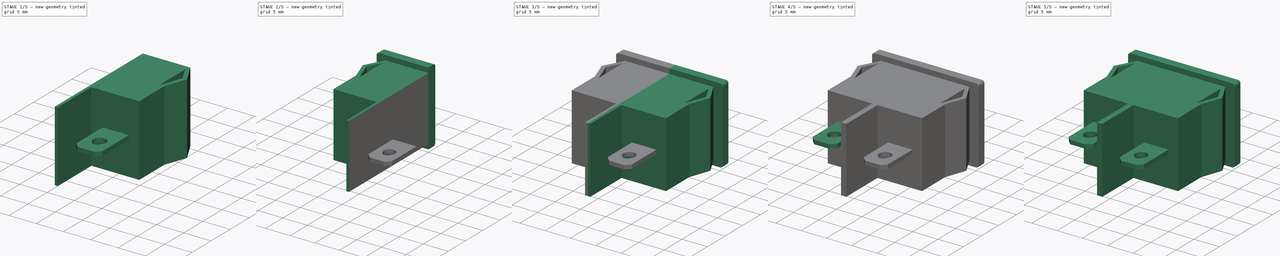
[diagram: build sequence overview — one tinted view per stage of 5, left to right]
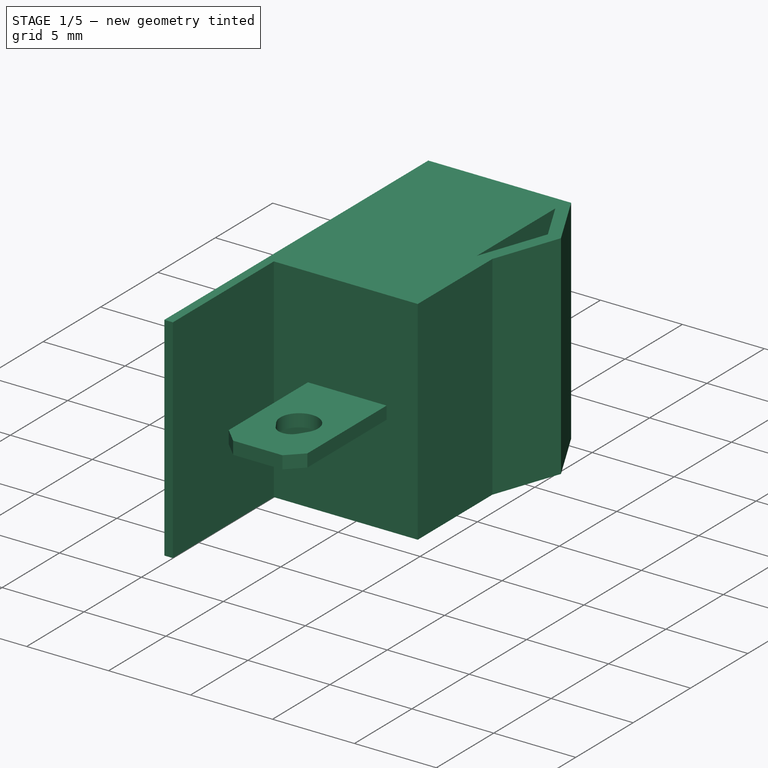
[diagram: stage 1 of 5 — iso view after this stage's code; geometry added in this stage tinted green]
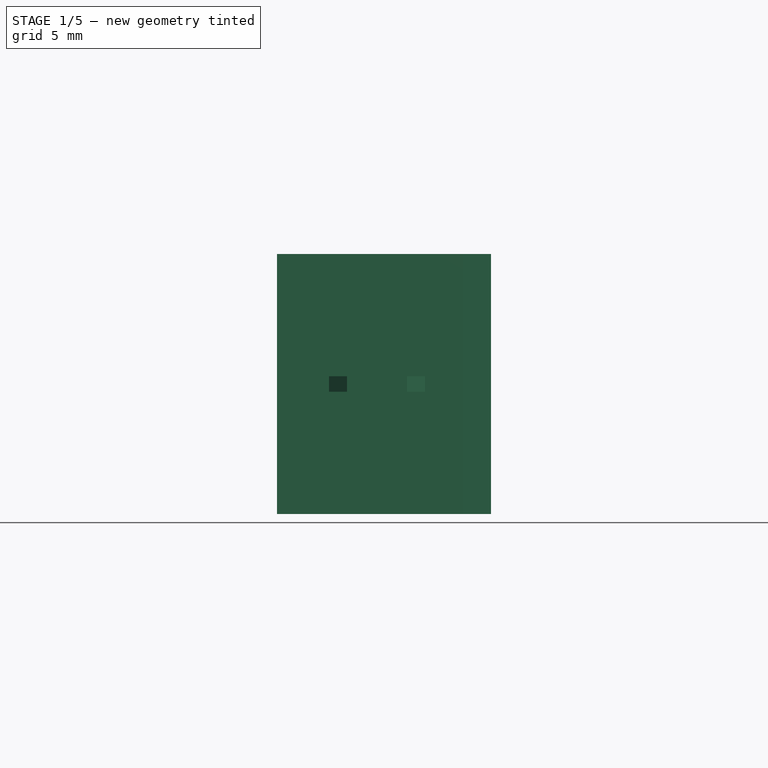
[diagram: stage 1 of 5 — front view after this stage's code; geometry added in this stage tinted green]
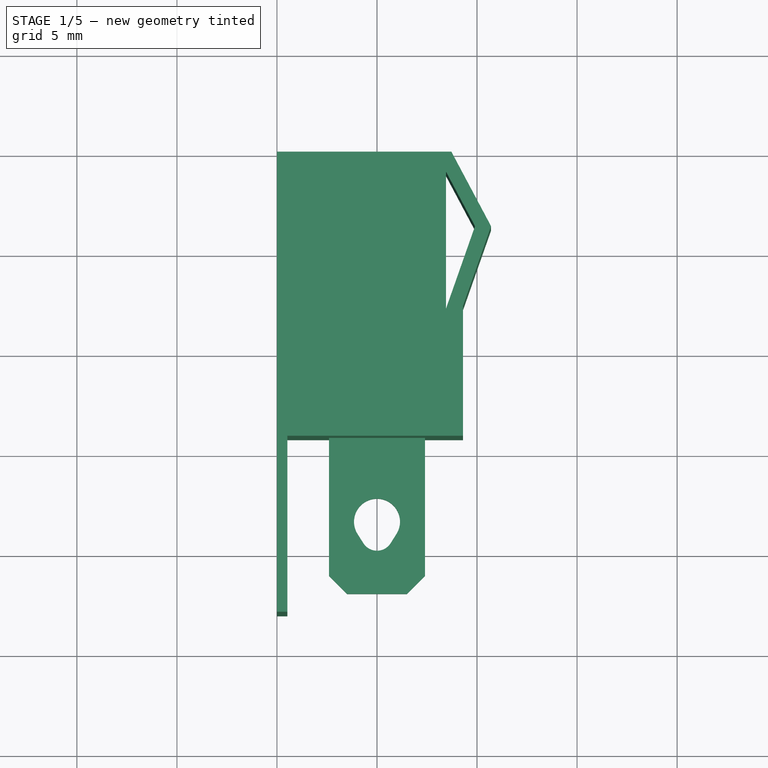
[diagram: stage 1 of 5 — top view after this stage's code; geometry added in this stage tinted green]
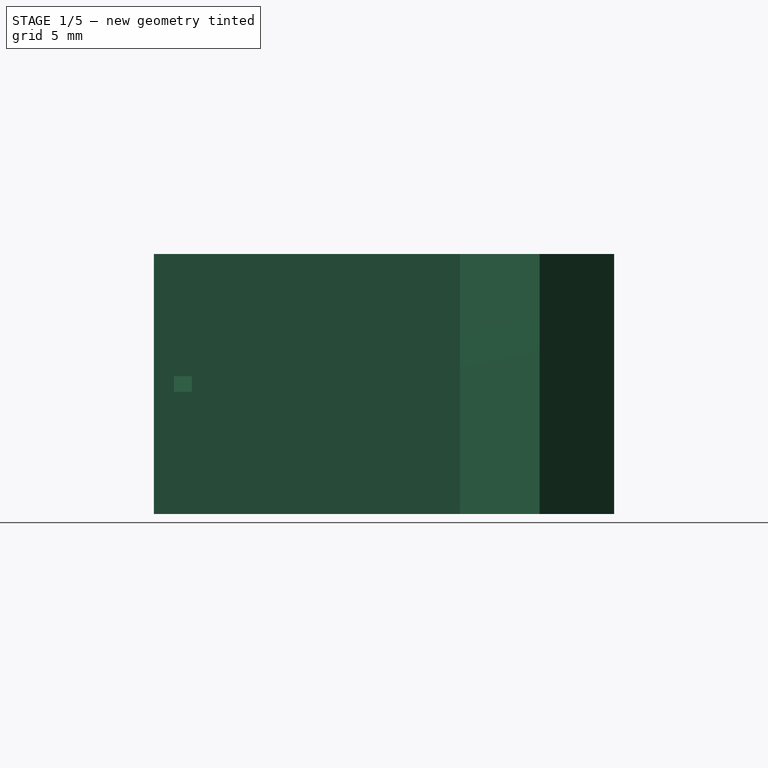
[diagram: stage 1 of 5 — right view after this stage's code; geometry added in this stage tinted green]
FCSTD DOCUMENT  (FreeCAD 0.16RUnknown)
Label: RLEIL RL3-4T125 55
License: All rights reserved
LicenseURL: http://en.wikipedia.org/wiki/All_rights_reserved
objects: Part::FeaturePython×5, Sketcher::SketchObject×4, PartDesign::Pad×4, Part::MultiFuse×4, Part::Fillet×2, App::DocumentObjectGroup×2, Spreadsheet::Sheet×1, Part::Mirroring×1
note: 24 computed .brp shape members not serialized (recipe doc carries the construction recipe); baked Part::Feature solids carry a one-line shape summary decoded from their .brp

FEATURE [Spreadsheet::Sheet] Spreadsheet  label="pars"
  cells = A1=Bolts and Nuts; B1=Value; D1=Components; E1=Value; A2=Thread Tight Tolerance (Radius, ratio); B2(ThrTighRatio)=0.96; D2=Tight Cilinder Tolerances (Radius, mm); E2(CilTight)=0.1; A3=Thread Tight Tolerance (Radius, mm); B3(ThrTightmm)=0.1; D3=Loose Cilinder Tolerances (Radius, mm); E3(CilLoose)=0.1; A5=Nut Slot Width Clearance (mm); B5(NutWidthClearmm)=0.1; A6=Nut Slot Thickess Clearance (mm); B6(NutThickClearmm)=0.1; A13=Particular parameters; B13=Value
FEATURE [Sketcher::SketchObject] Sketch  label="Main"
  sketch-geometry (12):
    g0: LineSegment StartX=8.7173 StartY=0 StartZ=0 EndX=10.7 EndY=-3.72201 EndZ=0
    g1: LineSegment StartX=10.7 StartY=-3.72201 StartZ=0 EndX=9.3 EndY=-7.7 EndZ=0
    g2: LineSegment StartX=9.3 StartY=-7.7 StartZ=0 EndX=9.3 EndY=-14.2 EndZ=0
    g3: LineSegment StartX=0 StartY=-23 StartZ=0 EndX=0 EndY=0 EndZ=0
    g4: LineSegment StartX=8.45 StartY=-1 StartZ=0 EndX=8.45 EndY=-7.84207 EndZ=0
    g5: LineSegment StartX=8.45 StartY=-7.84207 StartZ=0 EndX=9.9 EndY=-3.72201 EndZ=0
    g6: LineSegment StartX=9.9 StartY=-3.72201 StartZ=0 EndX=8.45 EndY=-1 EndZ=0
    g7: LineSegment [constr] StartX=9.9 StartY=-3.72201 StartZ=0 EndX=10.7 EndY=-3.72201 EndZ=0
    g8: LineSegment StartX=0 StartY=0 StartZ=0 EndX=8.7173 EndY=0 EndZ=0
    g9: LineSegment StartX=9.3 StartY=-14.2 StartZ=0 EndX=0.52 EndY=-14.2 EndZ=0
    g10: LineSegment StartX=0.52 StartY=-14.2 StartZ=0 EndX=0.52 EndY=-23 EndZ=0
    g11: LineSegment StartX=0.52 StartY=-23 StartZ=0 EndX=0 EndY=-23 EndZ=0
  constraints (34):
    c: Coincident(g0,g1)
    c: Coincident(g1,g2)
    c: Coincident(g4,g5)
    c: Coincident(g5,g6)
    c: Coincident(g6,g4)
    c: Vertical(g3)
    c: Vertical(g2)
    c: Vertical(g4)
    c: Parallel(g6,g0)
    c: Parallel(g5,g1)
    c: DistanceX(g3,g2) = 9.3
    c: Horizontal(g7)
    c: Coincident(g7,g5)
    c: Coincident(g7,g0)
    c: DistanceY(g2,g2) = 6.5
    c: DistanceX(g0) = 10.7
    c: Equal(g0,g1)
    c: DistanceX(g7,g7) = 0.8
    c: DistanceX(g4,g5) = 1.45
    c: Coincident(g3,g-1)
    c: Coincident(g8,g-1)
    c: Horizontal(g8)
    c: Coincident(g8,g0)
    c: DistanceY(g4,g0) = 1
    c: Coincident(g9,g10)
    c: Coincident(g10,g11)
    c: Horizontal(g9)
    c: Horizontal(g11)
    c: Coincident(g9,g2)
    c: DistanceY(g2) = -14.2
    c: Coincident(g3,g11)
    c: DistanceY(g3,g3) = 23
    c: DistanceX(g11,g11) = 0.52
    c: Vertical(g10)
FEATURE [PartDesign::Pad] Pad  label="Main001"
  Length = 13
  Length2 = 100
  Midplane = true
  Sketch = -> Sketch
  Type = 0
FEATURE [Sketcher::SketchObject] Sketch003  label="Metal"
  sketch-geometry (12):
    g0: LineSegment StartX=-2.4 StartY=0 StartZ=0 EndX=2.4 EndY=0 EndZ=0
    g1: LineSegment StartX=2.4 StartY=0 StartZ=0 EndX=2.4 EndY=-7.1 EndZ=0
    g2: LineSegment StartX=2.4 StartY=-7.1 StartZ=0 EndX=1.5 EndY=-8 EndZ=0
    g3: LineSegment StartX=1.5 StartY=-8 StartZ=0 EndX=-1.5 EndY=-8 EndZ=0
    g4: LineSegment StartX=-1.5 StartY=-8 StartZ=0 EndX=-2.4 EndY=-7.1 EndZ=0
    g5: LineSegment StartX=-2.4 StartY=-7.1 StartZ=0 EndX=-2.4 EndY=0 EndZ=0
    g6: ArcOfCircle CenterX=0 CenterY=-4.39 CenterZ=0 NormalX=0 NormalY=0 NormalZ=1 Radius=1.15 StartAngle=5.71869 EndAngle=9.98927
    g7: ArcOfCircle CenterX=0 CenterY=-5.03513 CenterZ=0 NormalX=0 NormalY=0 NormalZ=1 Radius=0.804865 StartAngle=3.70608 EndAngle=5.7187
    g8: LineSegment StartX=-0.68 StartY=-5.46573 StartZ=0 EndX=-0.971588 EndY=-5.00524 EndZ=0
    g9: LineSegment StartX=0.68 StartY=-5.46573 StartZ=0 EndX=0.971588 EndY=-5.00524 EndZ=0
    g10: GeomPoint [constr] X=0 Y=-3.24 Z=0
    g11: GeomPoint [constr] X=0 Y=-5.84 Z=0
  constraints (34):
    c: Coincident(g0,g1)
    c: Coincident(g1,g2)
    c: Coincident(g2,g3)
    c: Coincident(g3,g4)
    c: Coincident(g4,g5)
    c: Coincident(g0,g5)
    c: Symmetric(g0,g0,g-1)
    c: Horizontal(g0)
    c: Vertical(g5)
    c: Vertical(g1)
    c: Symmetric(g4,g1,g-2)
    c: Symmetric(g3,g2,g-2)
    c: DistanceX(g0,g0) = 4.8
    c: DistanceY(g2,g0) = 8
    c: Perpendicular(g4,g2)
    c: DistanceX(g3,g3) = 3
    c: Coincident(g8,g6)
    c: Coincident(g6,g9)
    c: Coincident(g9,g7)
    c: Coincident(g7,g8)
    c: Tangent(g6,g8)
    c: Tangent(g9,g6)
    c: Tangent(g7,g9)
    c: Tangent(g7,g8)
    c: PointOnObject(g6,g-2)
    c: PointOnObject(g7,g-2)
    c: PointOnObject(g11,g7)
    c: PointOnObject(g11,g-2)
    c: PointOnObject(g10,g6)
    c: PointOnObject(g10,g-2)
    c: Radius(g6) = 1.15
    c: DistanceY(g2,g11) = 2.16
    c: DistanceY(g11,g10) = 2.6
    c: DistanceX(g7,g7) = 1.36
FEATURE [PartDesign::Pad] Pad003  label="Metal001"
  Length = 0.78
  Length2 = 100
  Midplane = true
  Sketch = -> Sketch003
  Type = 0
FEATURE [App::DocumentObjectGroup] Group001  label="Component_src"
  Group = -> [Pad002,Fillet001,Pad003]
FEATURE [Part::FeaturePython] Clone001  label="Clone of Metal001"  # Draft clone (typed FeaturePython)
  Objects = -> [Pad003]
  Placement = pos=(5,-14,0) rot=(0,0,1;0rad)
  Scale = (1,1,1)
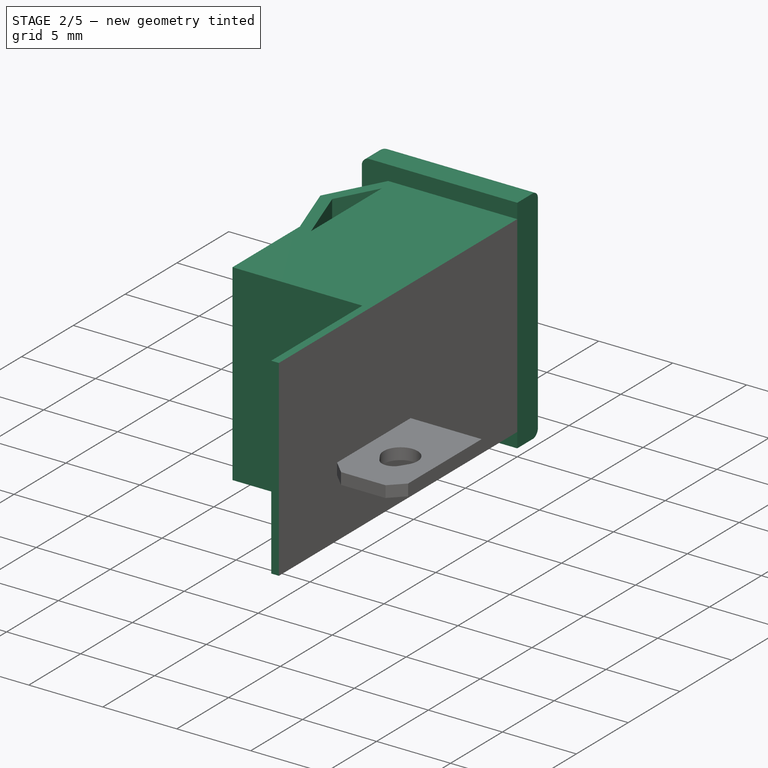
[diagram: stage 2 of 5 — iso view after this stage's code; geometry added in this stage tinted green]
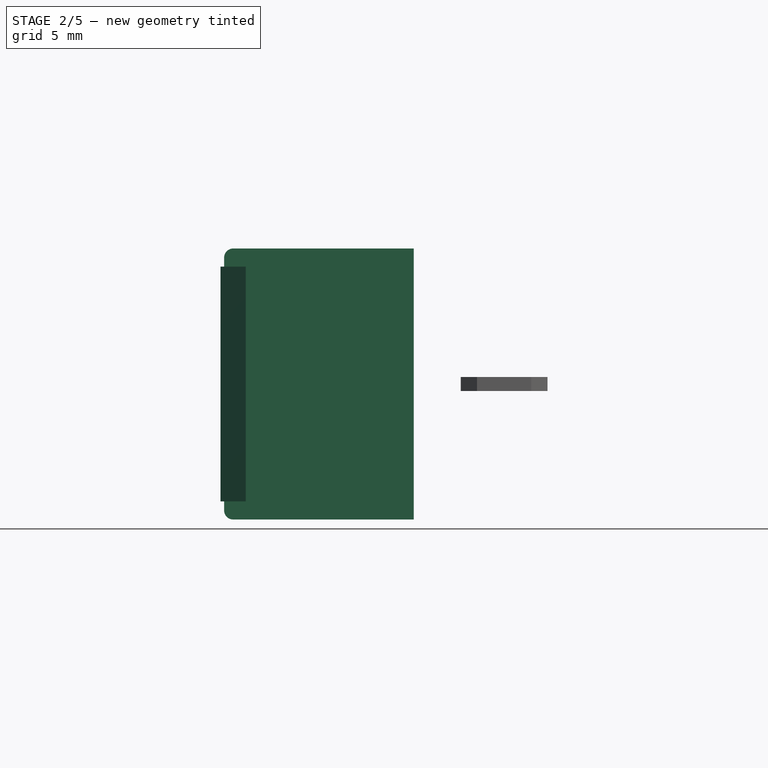
[diagram: stage 2 of 5 — front view after this stage's code; geometry added in this stage tinted green]
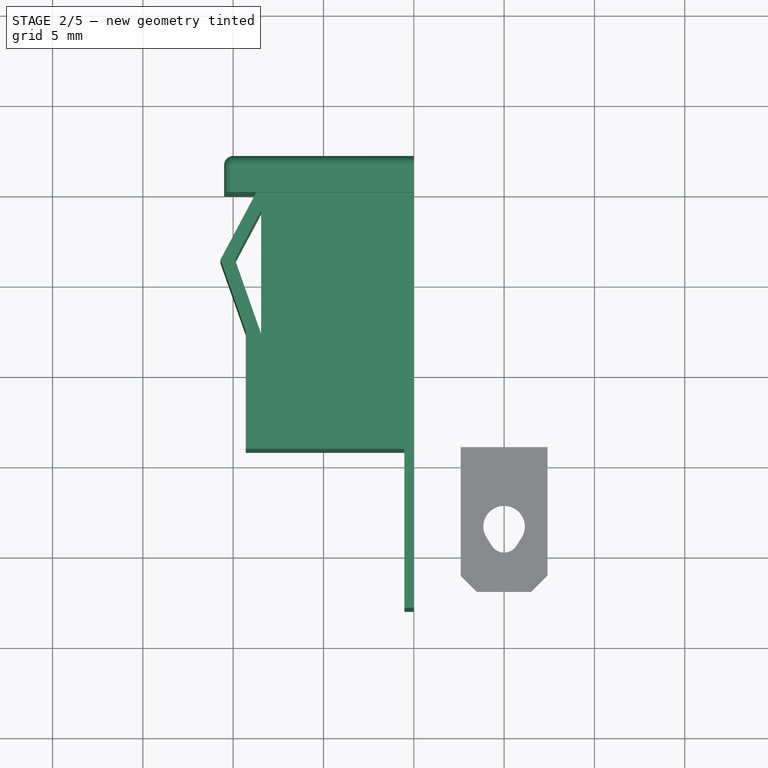
[diagram: stage 2 of 5 — top view after this stage's code; geometry added in this stage tinted green]
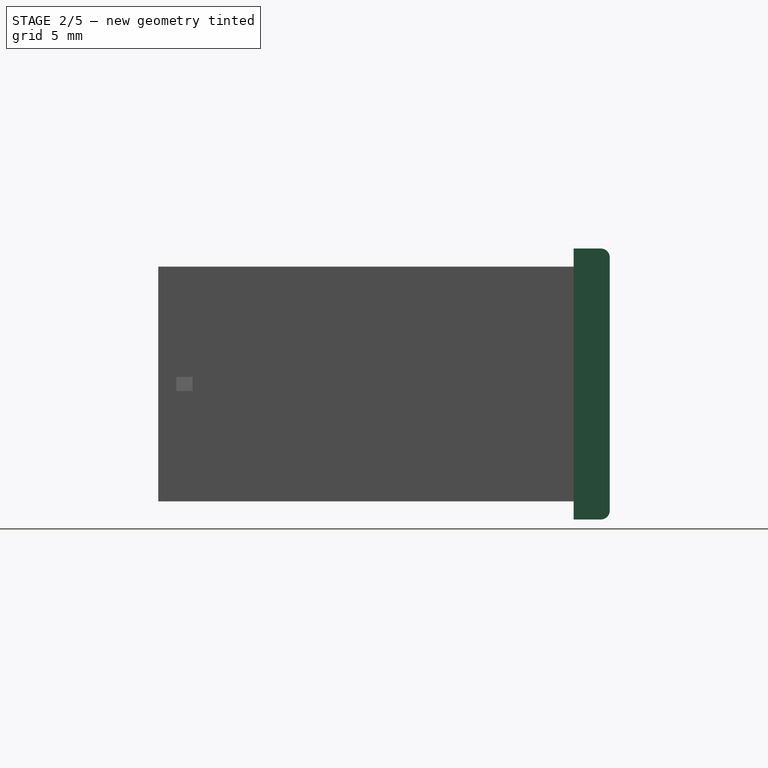
[diagram: stage 2 of 5 — right view after this stage's code; geometry added in this stage tinted green]
FEATURE [Sketcher::SketchObject] Sketch001  label="UpperSwitch"
  Placement = pos=(0,0,0) rot=(0,0.707107,0.707107;3.14159rad)
  Support = -> Pad [Face8]
  sketch-geometry (4):
    g0: LineSegment StartX=0 StartY=7.5 StartZ=0 EndX=-10.5 EndY=7.5 EndZ=0
    g1: LineSegment StartX=-10.5 StartY=7.5 StartZ=0 EndX=-10.5 EndY=-7.5 EndZ=0
    g2: LineSegment StartX=-10.5 StartY=-7.5 StartZ=0 EndX=0 EndY=-7.5 EndZ=0
    g3: LineSegment StartX=0 StartY=-7.5 StartZ=0 EndX=0 EndY=7.5 EndZ=0
  constraints (11):
    c: Coincident(g0,g1)
    c: Coincident(g1,g2)
    c: Coincident(g2,g3)
    c: Coincident(g3,g0)
    c: Horizontal(g0)
    c: Horizontal(g2)
    c: Vertical(g1)
    c: Vertical(g3)
    c: Symmetric(g0,g2,g-1)
    c: DistanceX(g0,g0) = 10.5
    c: DistanceY(g1,g1) = 15
FEATURE [PartDesign::Pad] Pad001  label="UpperSwitch001"
  Length = 2
  Length2 = 100
  Sketch = -> Sketch001
  Type = 0
FEATURE [Part::Fillet] Fillet  label="NiceFillet"
  Base = -> Pad001
  Edges = 5 edges r=0.5: [Edge42,Edge43,Edge44,Edge45,Edge46]
FEATURE [Part::Mirroring] Part__Mirroring  label="NiceFillet (Mirror #1)"
  Base = (0,0,0)
  Normal = (1,0,0)
  Source = -> Fillet
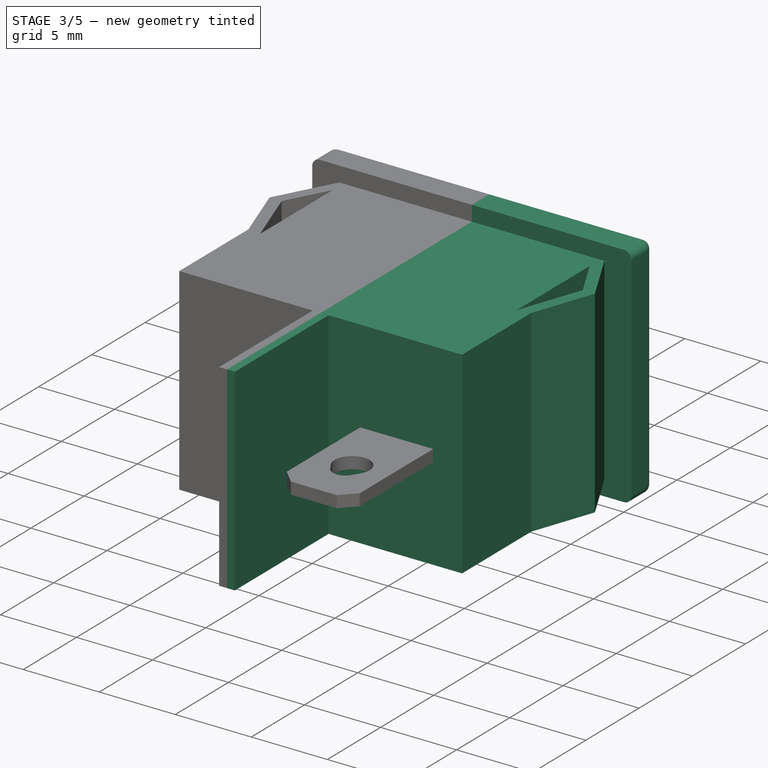
[diagram: stage 3 of 5 — iso view after this stage's code; geometry added in this stage tinted green]
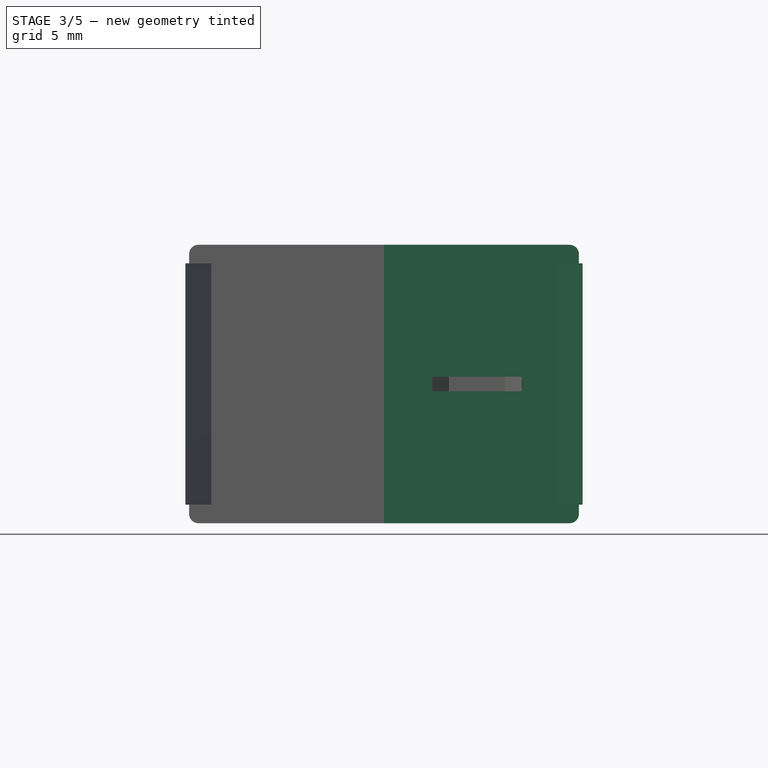
[diagram: stage 3 of 5 — front view after this stage's code; geometry added in this stage tinted green]
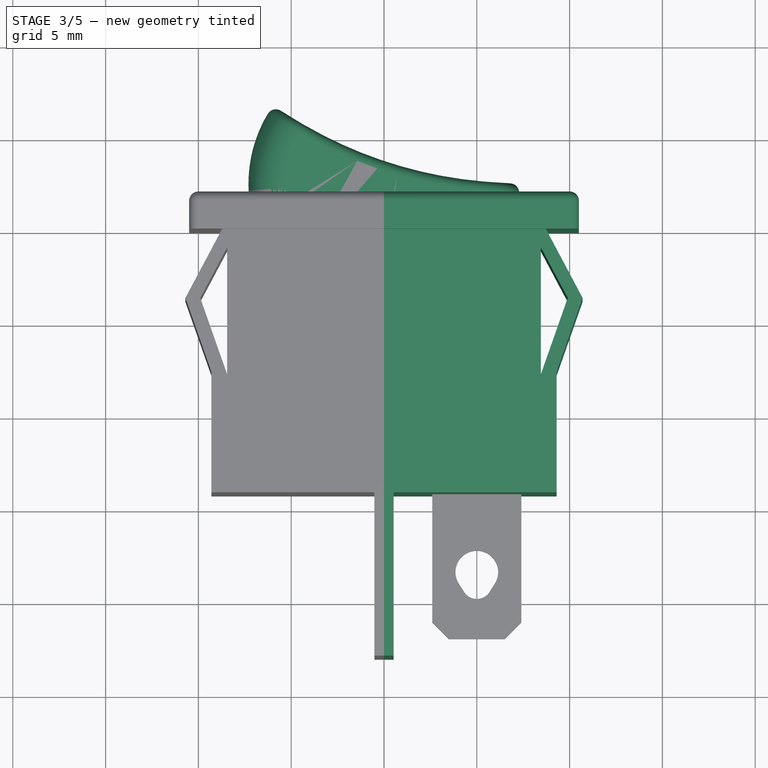
[diagram: stage 3 of 5 — top view after this stage's code; geometry added in this stage tinted green]
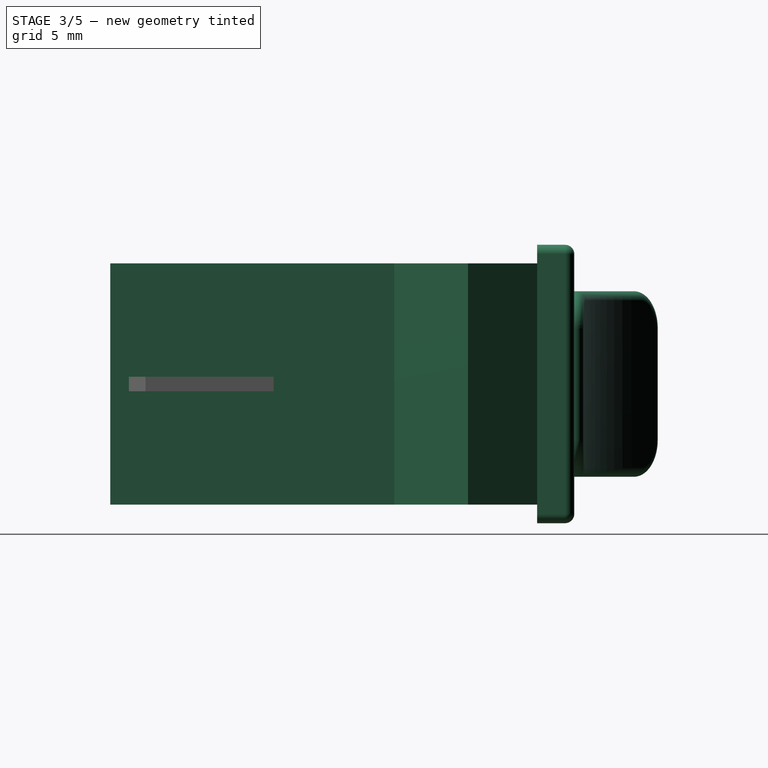
[diagram: stage 3 of 5 — right view after this stage's code; geometry added in this stage tinted green]
FEATURE [Sketcher::SketchObject] Sketch002  label="Switch"
  sketch-geometry (3):
    g0: ArcOfCircle CenterX=0 CenterY=0 CenterZ=0 NormalX=0 NormalY=0 NormalZ=1 Radius=7.3 StartAngle=2.52857 EndAngle=6.28319
    g1: ArcOfCircle CenterX=7.29997 CenterY=23.0658 CenterZ=0 NormalX=0 NormalY=0 NormalZ=1 Radius=23.0658 StartAngle=4.09937 EndAngle=4.71239
    g2: GeomPoint [constr] X=-7.3 Y=0 Z=0
  constraints (9):
    c: Coincident(g1,g0)
    c: Coincident(g1,g0)
    c: Coincident(g-1,g0)
    c: PointOnObject(g0,g-1)
    c: PointOnObject(g2,g0)
    c: PointOnObject(g2,g-1)
    c: DistanceX(g2,g0) = 14.6
    c: Tangent(g1,g-1)
    c: DistanceY(g0) = 4.2
FEATURE [PartDesign::Pad] Pad002  label="Switch001"
  Length = 10
  Length2 = 100
  Midplane = true
  Sketch = -> Sketch002
  Type = 0
FEATURE [Part::Fillet] Fillet001  label="FilletSwitch"
  Base = -> Pad002
  Edges = 6 edges: [Edge1 r=0.5,Edge2 r=0.5,Edge3 r=2,Edge4 r=2,Edge5 r=0.5,Edge6 r=0.5]
FEATURE [Part::FeaturePython] Clone  label="Clone of FilletSwitch"  # Draft clone (typed FeaturePython)
  Objects = -> [Fillet001]
  Placement = pos=(0,2.5,0) rot=(0,0,1;0rad)
  Scale = (1,1,1)
FEATURE [Part::MultiFuse] Fusion  label="Mirroring"
  Shapes = -> [Part__Mirroring,Fillet]
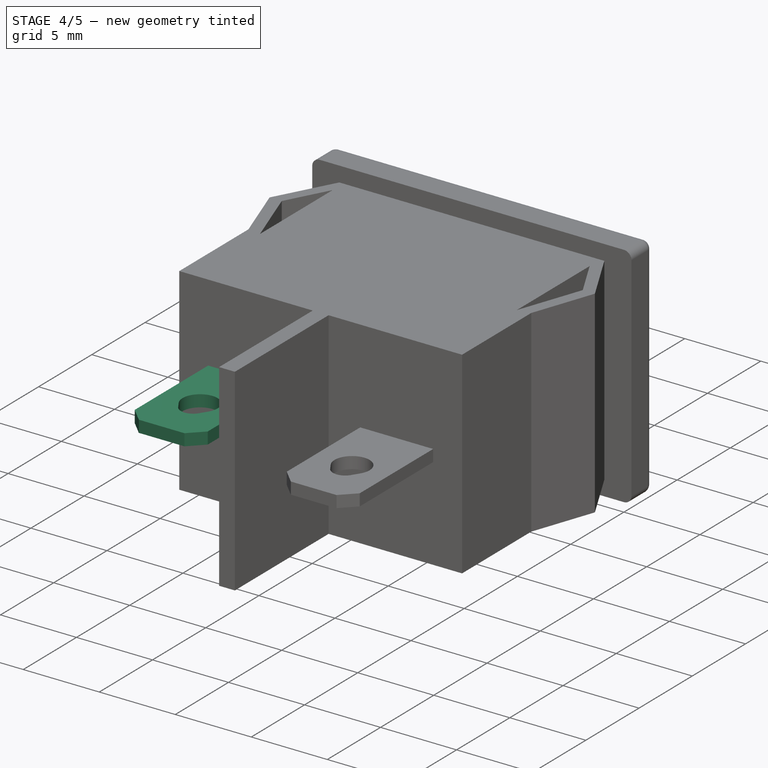
[diagram: stage 4 of 5 — iso view after this stage's code; geometry added in this stage tinted green]
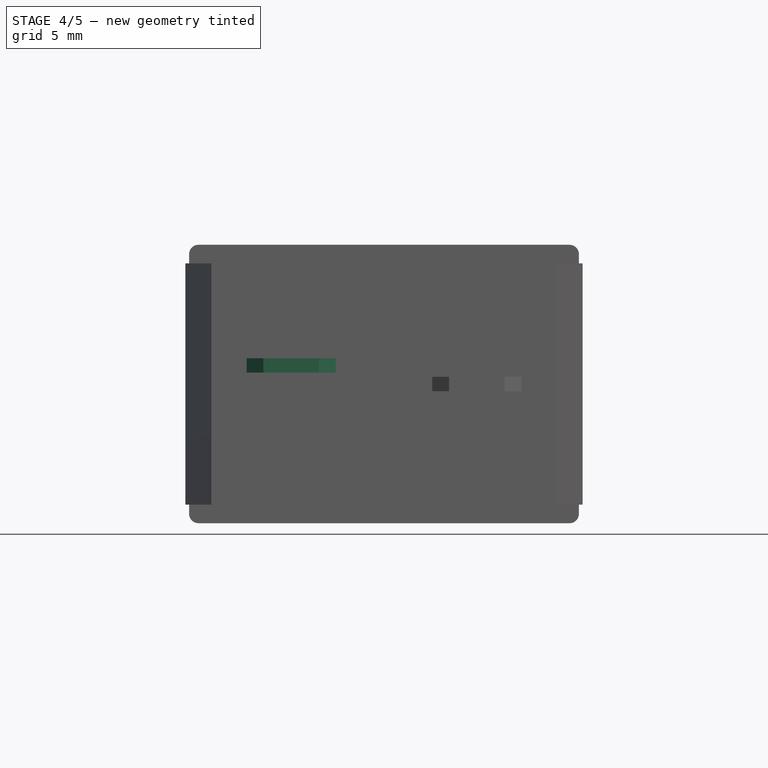
[diagram: stage 4 of 5 — front view after this stage's code; geometry added in this stage tinted green]
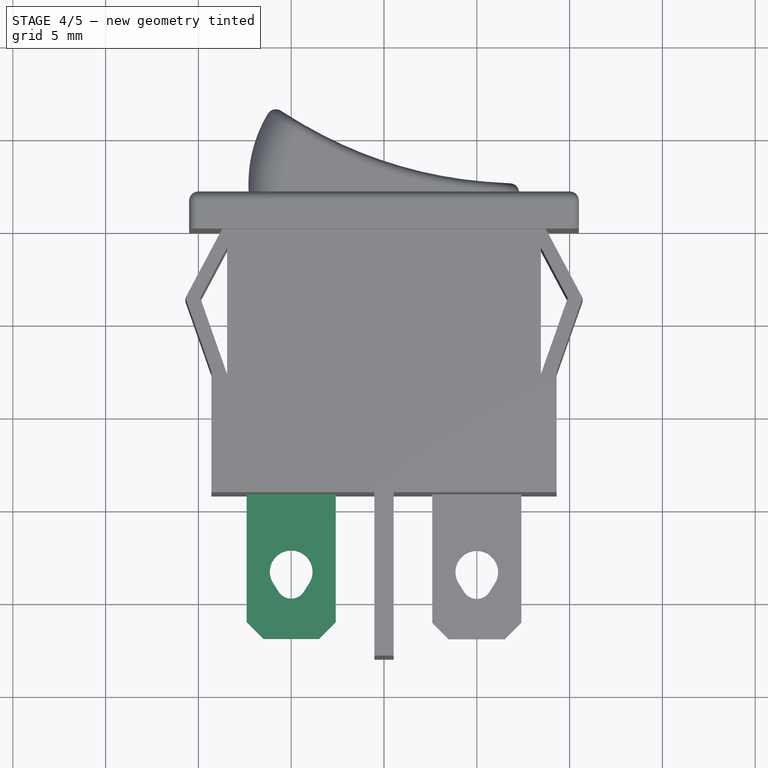
[diagram: stage 4 of 5 — top view after this stage's code; geometry added in this stage tinted green]
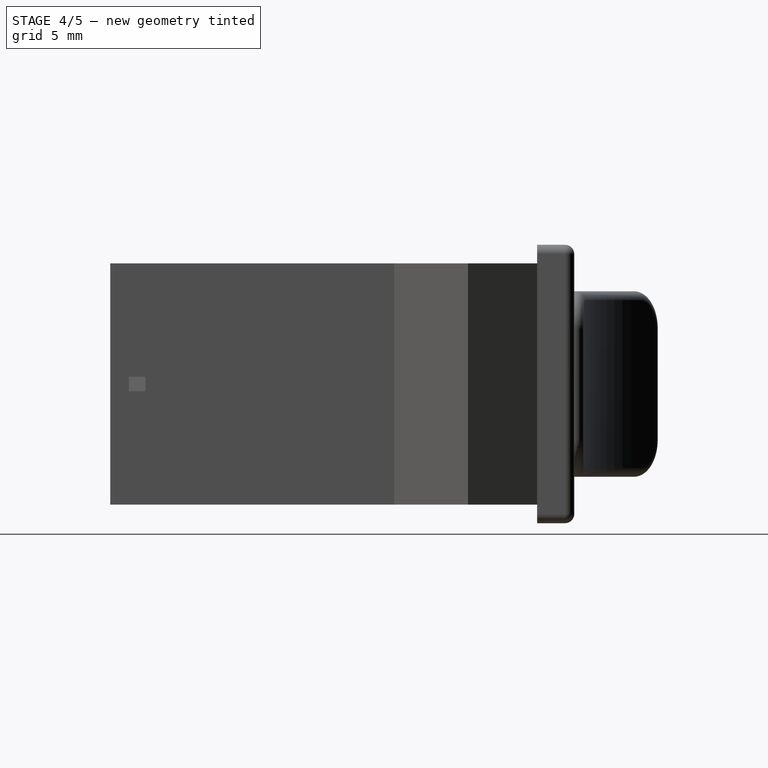
[diagram: stage 4 of 5 — right view after this stage's code; geometry added in this stage tinted green]
FEATURE [Part::MultiFuse] Fusion001  label="SwitchFusion"
  Shapes = -> [Fusion,Clone]
FEATURE [Part::FeaturePython] Clone002  label="Clone of Metal002"  # Draft clone (typed FeaturePython)
  Objects = -> [Pad003]
  Placement = pos=(-5,-14,1) rot=(0,0,1;0rad)
  Scale = (1,1,1)
FEATURE [Part::MultiFuse] Fusion002
  Shapes = -> [Fusion001,Clone001]
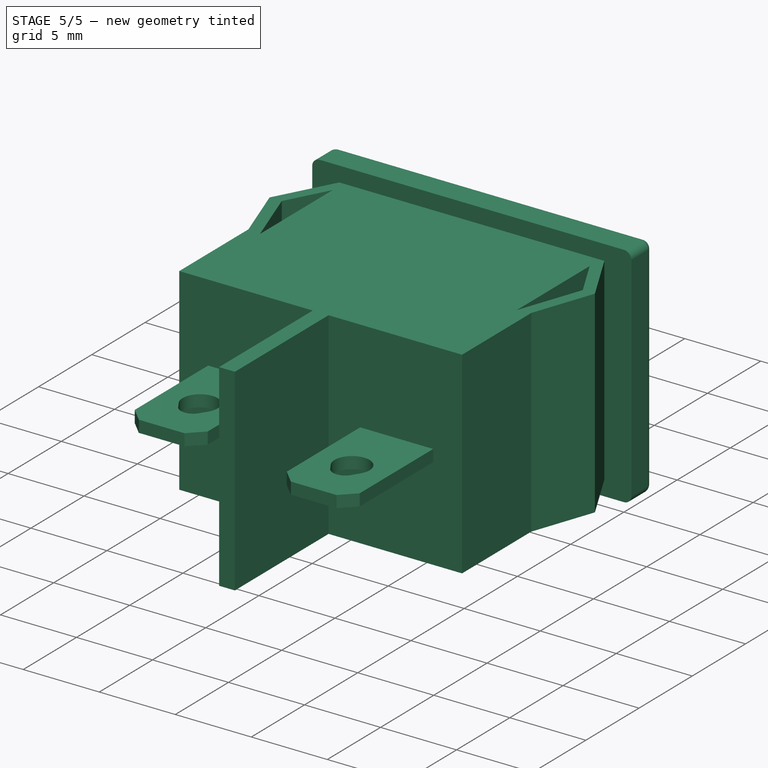
[diagram: stage 5 of 5 — iso view after this stage's code; geometry added in this stage tinted green]
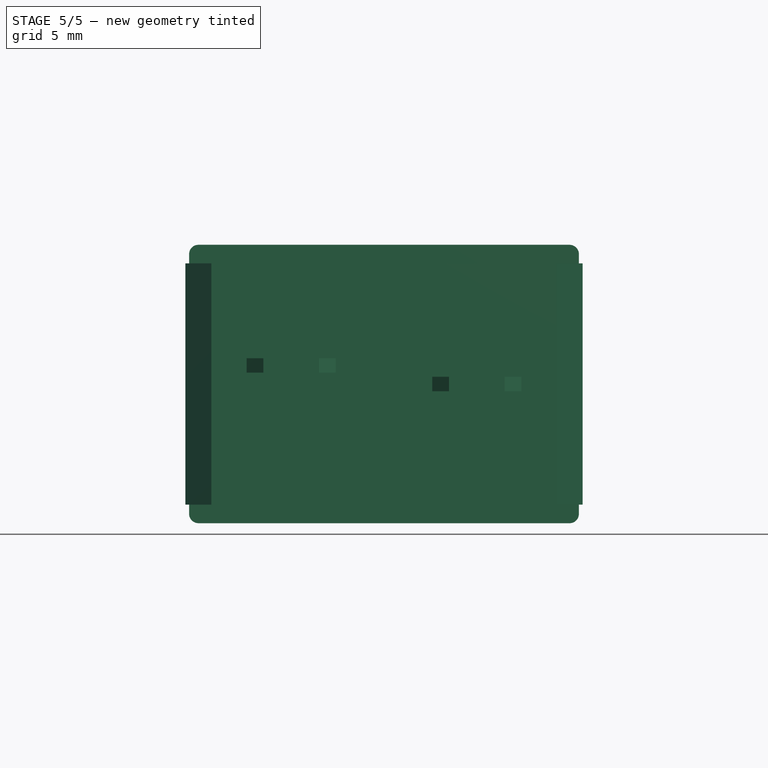
[diagram: stage 5 of 5 — front view after this stage's code; geometry added in this stage tinted green]
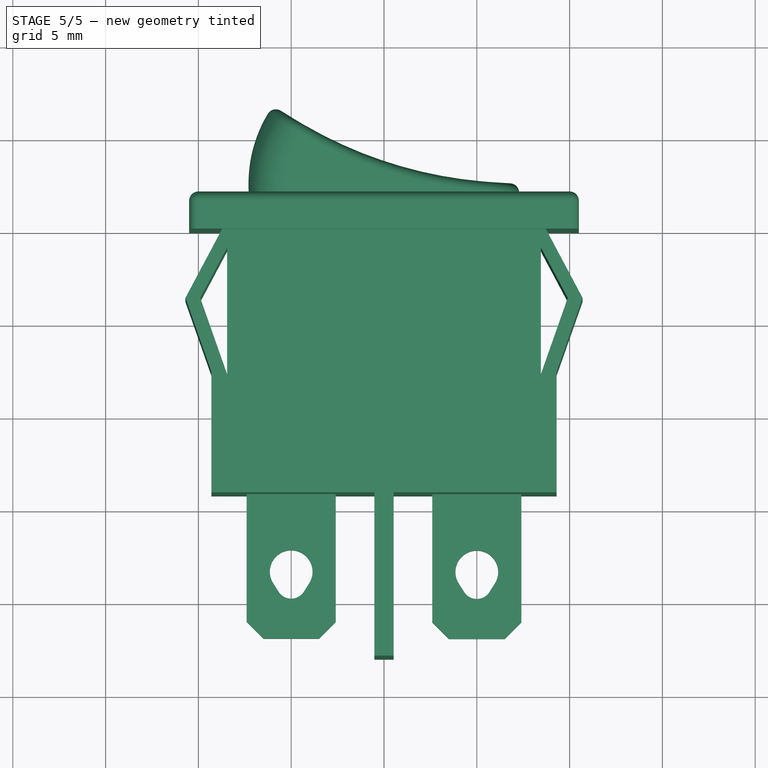
[diagram: stage 5 of 5 — top view after this stage's code; geometry added in this stage tinted green]
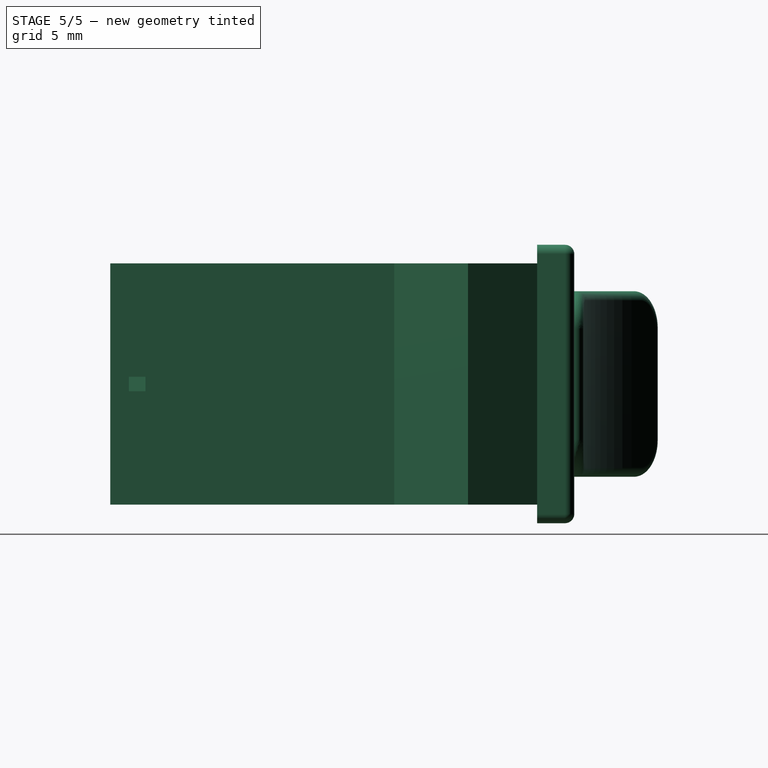
[diagram: stage 5 of 5 — right view after this stage's code; geometry added in this stage tinted green]
FEATURE [Part::MultiFuse] Fusion003  label="MetalFusion"
  Shapes = -> [Fusion002,Clone002]
FEATURE [Part::FeaturePython] refine  label="refine_MetalFusion"  # WARN: FeaturePython — macro-defined, semantics opaque (R4)
  Base = -> Fusion003
FEATURE [App::DocumentObjectGroup] Group  label="src"
  Group = -> [Pad,Pad001,Fusion003,refine]
FEATURE [Part::FeaturePython] Clone004  label="RLEILSwitch"  # Draft clone (typed FeaturePython)
  Objects = -> [refine]
  Scale = (1,1,1)
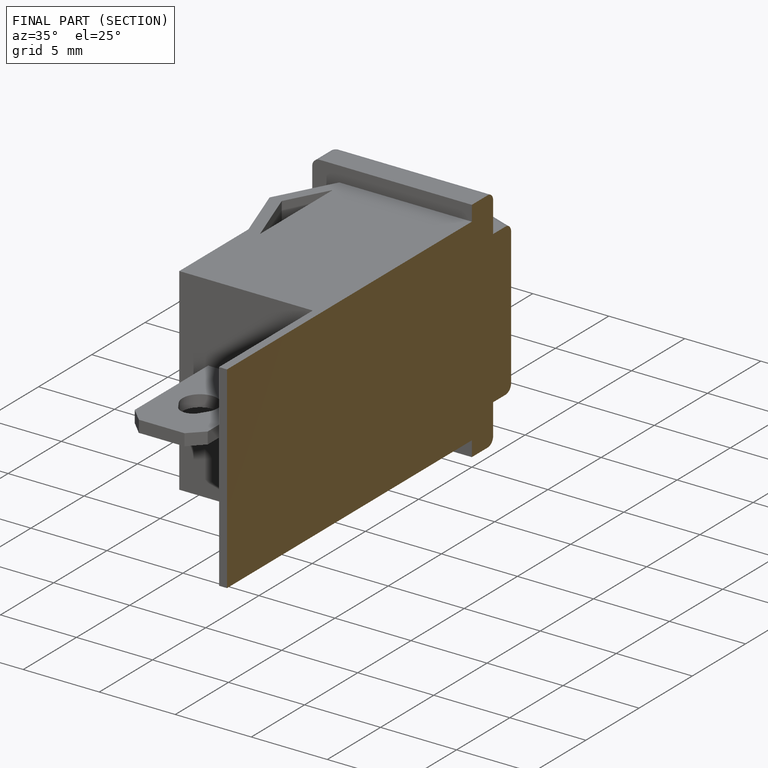
[diagram: finished part — half-section view (interior)]
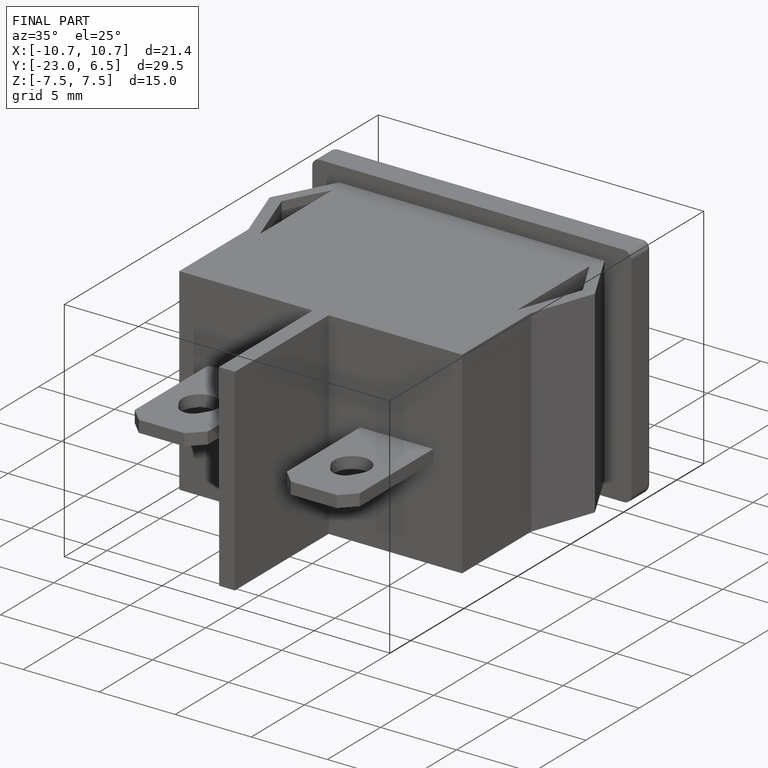
[diagram: finished part — iso view with bounding-box wireframe]
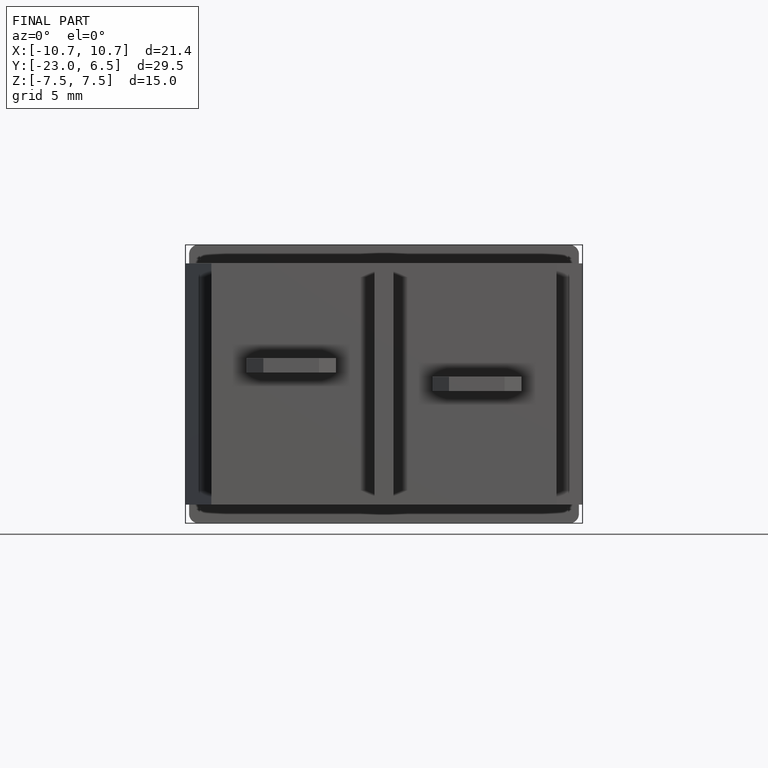
[diagram: finished part — front view with bounding-box wireframe]
